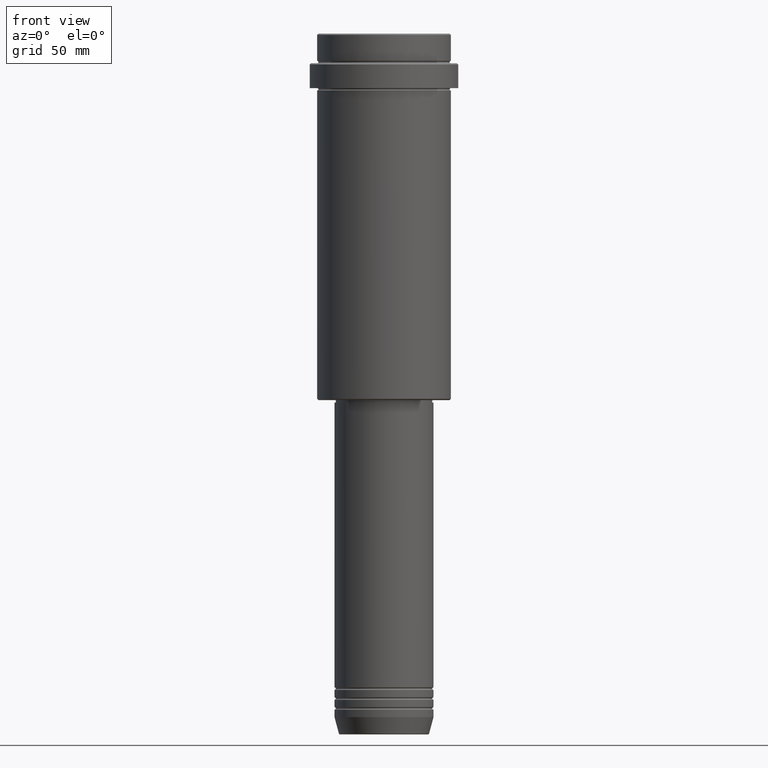
[diagram: clean part render]
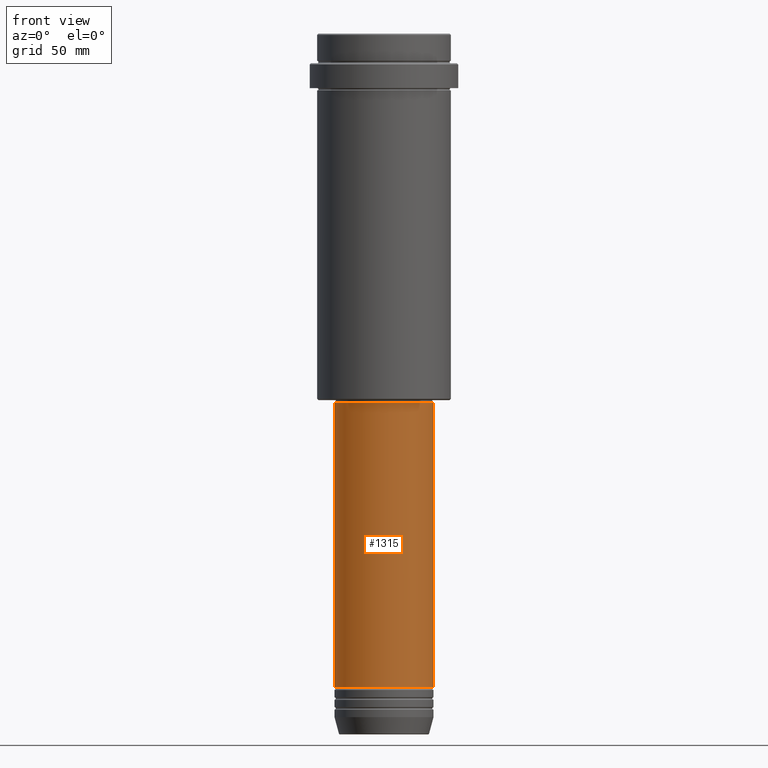
[diagram: same view with one face highlighted and labeled with its STEP entity id]
A machine part, front view. The second image highlights one B-rep face of the part: STEP entity #1315.
In plain terms, the highlighted cylindrical surface (partial cylindrical patch) has radius 20 mm, axis along (-0, -0, 1).
Its self-contained STEP definition (entity closure, byte-faithful):
#6 = CARTESIAN_POINT ( 'NONE',  ( 0.000000000000000000, 0.000000000000000000, -149.0000000000001137 ) ) ;
#25 = FACE_OUTER_BOUND ( 'NONE', #778, .T. ) ;
#110 = AXIS2_PLACEMENT_3D ( 'NONE', #733, #952, #1380 ) ;
#112 = EDGE_CURVE ( 'NONE', #769, #804, #1164, .T. ) ;
#119 = AXIS2_PLACEMENT_3D ( 'NONE', #6, #1006, #756 ) ;
#136 = ORIENTED_EDGE ( 'NONE', *, *, #918, .T. ) ;
#201 = LINE ( 'NONE', #1201, #1365 ) ;
#231 = CARTESIAN_POINT ( 'NONE',  ( 20.00000000000000000, 0.000000000000000000, -263.9999999999998863 ) ) ;
#317 = EDGE_CURVE ( 'NONE', #605, #1324, #201, .T. ) ;
#417 = DIRECTION ( 'NONE',  ( -0.000000000000000000, -0.000000000000000000, 1.000000000000000000 ) ) ;
#462 = DIRECTION ( 'NONE',  ( -0.000000000000000000, -0.000000000000000000, 1.000000000000000000 ) ) ;
#476 = CARTESIAN_POINT ( 'NONE',  ( -19.99999999999999645, 2.449293598294706119E-15, -149.0000000000001137 ) ) ;
#502 = AXIS2_PLACEMENT_3D ( 'NONE', #1037, #462, #1231 ) ;
#555 = CIRCLE ( 'NONE', #119, 19.99999999999999645 ) ;
#605 = VERTEX_POINT ( 'NONE', #231 ) ;
#674 = EDGE_CURVE ( 'NONE', #804, #1324, #555, .T. ) ;
#733 = CARTESIAN_POINT ( 'NONE',  ( 0.000000000000000000, 0.000000000000000000, -263.9999999999998863 ) ) ;
#756 = DIRECTION ( 'NONE',  ( 1.000000000000000000, 0.000000000000000000, 0.000000000000000000 ) ) ;
#769 = VERTEX_POINT ( 'NONE', #812 ) ;
#778 = EDGE_LOOP ( 'NONE', ( #1291, #136, #822, #1215 ) ) ;
#804 = VERTEX_POINT ( 'NONE', #476 ) ;
#812 = CARTESIAN_POINT ( 'NONE',  ( -20.00000000000000000, 2.449293598294706513E-15, -263.9999999999998863 ) ) ;
#822 = ORIENTED_EDGE ( 'NONE', *, *, #317, .T. ) ;
#823 = CARTESIAN_POINT ( 'NONE',  ( -19.99999999999999645, 2.449293598294706119E-15, 0.000000000000000000 ) ) ;
#918 = EDGE_CURVE ( 'NONE', #769, #605, #1342, .T. ) ;
#952 = DIRECTION ( 'NONE',  ( -0.000000000000000000, -0.000000000000000000, 1.000000000000000000 ) ) ;
#1006 = DIRECTION ( 'NONE',  ( -0.000000000000000000, -0.000000000000000000, 1.000000000000000000 ) ) ;
#1037 = CARTESIAN_POINT ( 'NONE',  ( 0.000000000000000000, 0.000000000000000000, 0.000000000000000000 ) ) ;
#1096 = VECTOR ( 'NONE', #1139, 1000.000000000000000 ) ;
#1139 = DIRECTION ( 'NONE',  ( -0.000000000000000000, -0.000000000000000000, 1.000000000000000000 ) ) ;
#1164 = LINE ( 'NONE', #823, #1096 ) ;
#1201 = CARTESIAN_POINT ( 'NONE',  ( 19.99999999999999645, 0.000000000000000000, 0.000000000000000000 ) ) ;
#1215 = ORIENTED_EDGE ( 'NONE', *, *, #674, .F. ) ;
#1231 = DIRECTION ( 'NONE',  ( 1.000000000000000000, 0.000000000000000000, 0.000000000000000000 ) ) ;
#1291 = ORIENTED_EDGE ( 'NONE', *, *, #112, .F. ) ;
#1315 = ADVANCED_FACE ( 'NONE', ( #25 ), #1340, .T. ) ;
#1324 = VERTEX_POINT ( 'NONE', #1348 ) ;
#1340 = CYLINDRICAL_SURFACE ( 'NONE', #502, 19.99999999999999645 ) ;
#1342 = CIRCLE ( 'NONE', #110, 20.00000000000000000 ) ;
#1348 = CARTESIAN_POINT ( 'NONE',  ( 19.99999999999999645, 0.000000000000000000, -149.0000000000001137 ) ) ;
#1365 = VECTOR ( 'NONE', #417, 1000.000000000000000 ) ;
#1380 = DIRECTION ( 'NONE',  ( 1.000000000000000000, 0.000000000000000000, 0.000000000000000000 ) ) ;